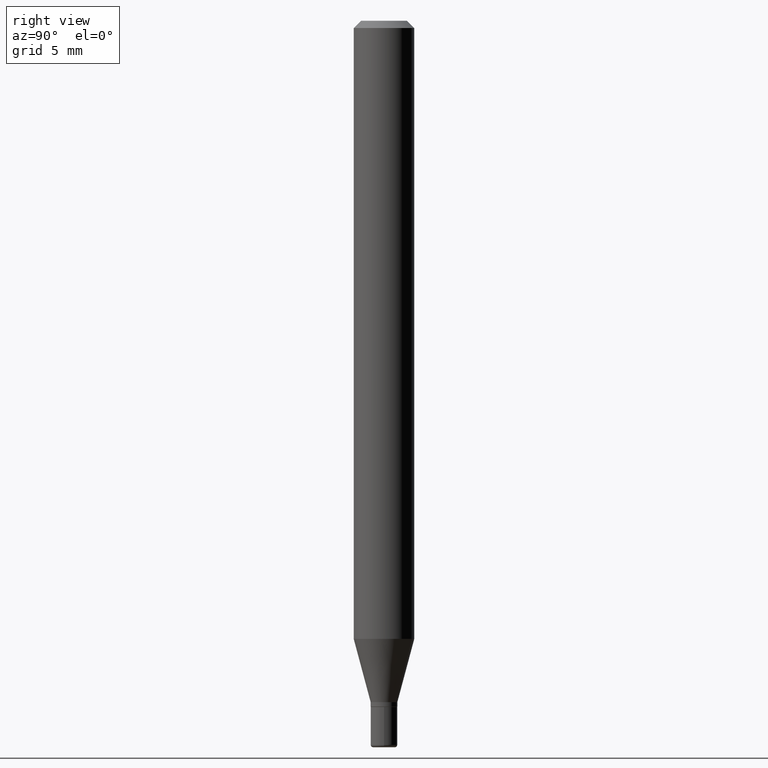
[diagram: clean part render]
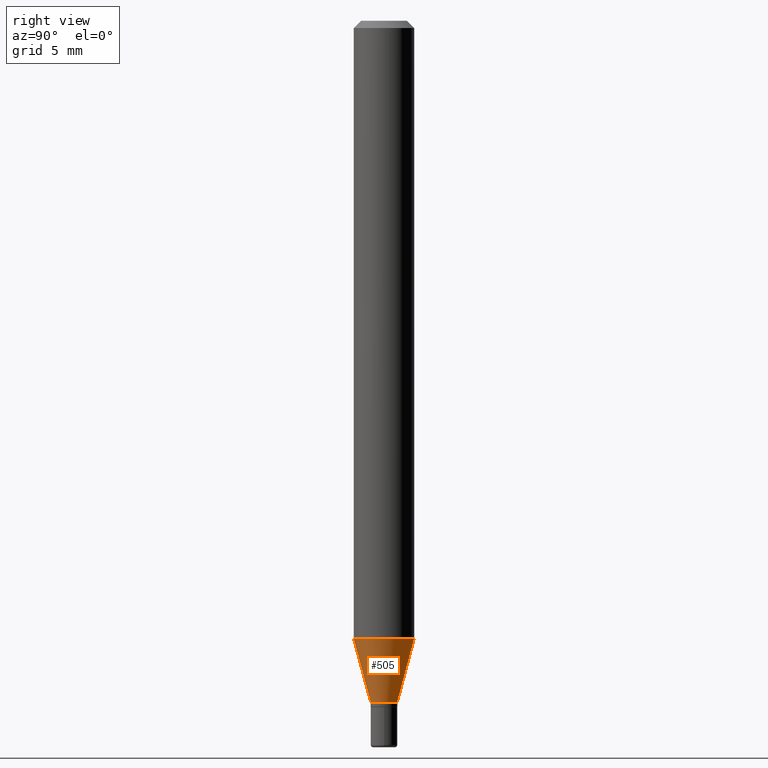
[diagram: same view with one face highlighted and labeled with its STEP entity id]
A machine part, right view. The second image highlights one B-rep face of the part: STEP entity #505.
In plain terms, the highlighted conical surface has half-angle 15 deg.
Its self-contained STEP definition (entity closure, byte-faithful):
#14 = EDGE_CURVE ( 'NONE', #460, #210, #39, .T. ) ;
#16 = ORIENTED_EDGE ( 'NONE', *, *, #92, .F. ) ;
#21 = DIRECTION ( 'NONE',  ( -6.982962677686265922E-15, -1.000000000000000000, 0.000000000000000000 ) ) ;
#39 = LINE ( 'NONE', #384, #171 ) ;
#40 = CARTESIAN_POINT ( 'NONE',  ( 3.197442310920783026E-16, 0.02749999999999518802, -1.407000000000000250 ) ) ;
#42 = CARTESIAN_POINT ( 'NONE',  ( -4.364351673553605587E-16, -0.06250000000000449640, -1.276378221735089857 ) ) ;
#60 = DIRECTION ( 'NONE',  ( 1.839019923739596371E-15, 0.2588190451025244032, 0.9659258262890673130 ) ) ;
#80 = DIRECTION ( 'NONE',  ( -6.982962677686265922E-15, -1.000000000000000000, 4.370956789862821150E-15 ) ) ;
#92 = EDGE_CURVE ( 'NONE', #210, #300, #409, .T. ) ;
#112 = CARTESIAN_POINT ( 'NONE',  ( 3.121294352947271475E-29, -4.456520588492188599E-15, -1.276378221735090079 ) ) ;
#115 = VECTOR ( 'NONE', #60, 39.37007874015748143 ) ;
#116 = CARTESIAN_POINT ( 'NONE',  ( 3.440720845759065849E-29, -4.912591237638575836E-15, -1.407000000000000250 ) ) ;
#123 = FACE_OUTER_BOUND ( 'NONE', #381, .T. ) ;
#130 = DIRECTION ( 'NONE',  ( -2.445430594000756604E-29, 3.491536060866079986E-15, 1.000000000000000000 ) ) ;
#157 = ORIENTED_EDGE ( 'NONE', *, *, #263, .T. ) ;
#171 = VECTOR ( 'NONE', #194, 39.37007874015748854 ) ;
#175 = CARTESIAN_POINT ( 'NONE',  ( 4.440892098500935790E-16, 0.06249999999999551747, -1.276378221735090301 ) ) ;
#194 = DIRECTION ( 'NONE',  ( -1.807323732225326195E-15, -0.2588190451025176309, 0.9659258262890690894 ) ) ;
#204 = LINE ( 'NONE', #277, #115 ) ;
#210 = VERTEX_POINT ( 'NONE', #42 ) ;
#260 = AXIS2_PLACEMENT_3D ( 'NONE', #116, #269, #21 ) ;
#263 = EDGE_CURVE ( 'NONE', #412, #300, #204, .T. ) ;
#269 = DIRECTION ( 'NONE',  ( -2.445430594000756604E-29, 3.491536060866079986E-15, 1.000000000000000000 ) ) ;
#272 = DIRECTION ( 'NONE',  ( -6.982962677686265922E-15, -1.000000000000000000, 0.000000000000000000 ) ) ;
#277 = CARTESIAN_POINT ( 'NONE',  ( 1.953992523340626318E-16, 0.02749999999999518802, -1.407000000000000250 ) ) ;
#294 = CONICAL_SURFACE ( 'NONE', #330, 0.02750000000000010075, 0.2617993877991496854 ) ;
#300 = VERTEX_POINT ( 'NONE', #175 ) ;
#303 = AXIS2_PLACEMENT_3D ( 'NONE', #112, #387, #80 ) ;
#320 = CARTESIAN_POINT ( 'NONE',  ( 3.440720845759065849E-29, -4.912591237638575836E-15, -1.407000000000000250 ) ) ;
#330 = AXIS2_PLACEMENT_3D ( 'NONE', #320, #130, #272 ) ;
#365 = ORIENTED_EDGE ( 'NONE', *, *, #14, .F. ) ;
#381 = EDGE_LOOP ( 'NONE', ( #389, #157, #16, #365 ) ) ;
#384 = CARTESIAN_POINT ( 'NONE',  ( -1.920314736363385959E-16, -0.02750000000000501349, -1.407000000000000250 ) ) ;
#387 = DIRECTION ( 'NONE',  ( -2.445430594000756604E-29, 3.491536060866079986E-15, 1.000000000000000000 ) ) ;
#389 = ORIENTED_EDGE ( 'NONE', *, *, #413, .T. ) ;
#409 = CIRCLE ( 'NONE', #303, 0.06250000000000000000 ) ;
#412 = VERTEX_POINT ( 'NONE', #40 ) ;
#413 = EDGE_CURVE ( 'NONE', #460, #412, #506, .T. ) ;
#460 = VERTEX_POINT ( 'NONE', #486 ) ;
#486 = CARTESIAN_POINT ( 'NONE',  ( -1.920314736363385959E-16, -0.02750000000000501349, -1.407000000000000250 ) ) ;
#505 = ADVANCED_FACE ( 'NONE', ( #123 ), #294, .T. ) ;
#506 = CIRCLE ( 'NONE', #260, 0.02750000000000010075 ) ;